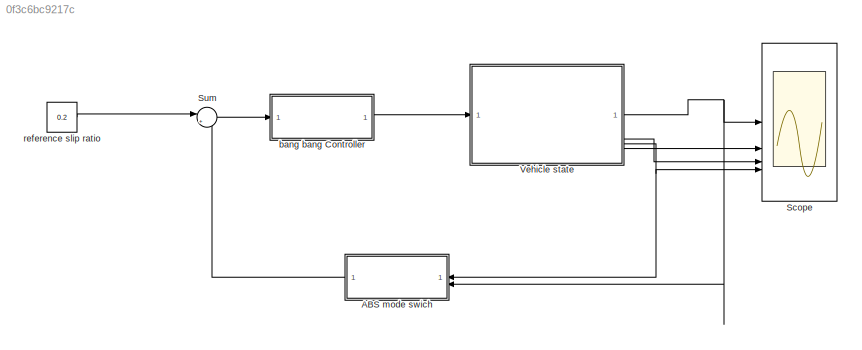
MODEL slx_0f3c6bc9217c
KIND model
CONFIG AbsTol = auto
CONFIG EnableMultiTasking = off
CONFIG FixedStep = 0.01
CONFIG MaxStep = auto
CONFIG MinStep = auto
CONFIG RelTol = 1e-3
CONFIG SampleTimeConstraint = Unconstrained
CONFIG SolverName = ode3
CONFIG StartTime = 0.0
CONFIG StopTime = 4.5
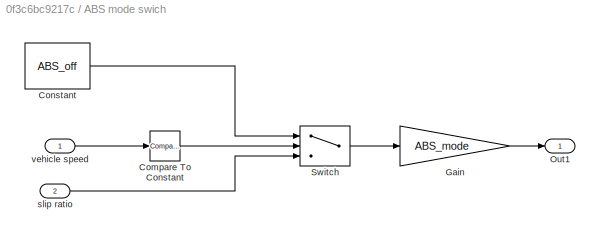
BLOCK [SubSystem] ABS mode swich
BLOCK [Reference] ABS mode swich/Compare To Constant  REF=simulink/Logic and Bit
Operations/Compare
To Constant
  SourceBlock = simulink/Logic and Bit\nOperations/Compare\nTo Constant
  SourceType = Compare To Constant
BLOCK [Constant] ABS mode swich/Constant
  Value = ABS_off
BLOCK [Gain] ABS mode swich/Gain
  Gain = ABS_mode
BLOCK [Outport] ABS mode swich/Out1
BLOCK [Switch] ABS mode swich/Switch
  Criteria = u2 > Threshold
  InputSameDT = off
  SaturateOnIntegerOverflow = off
BLOCK [Inport] ABS mode swich/slip ratio
  Port = 2
BLOCK [Inport] ABS mode swich/vehicle speed
BLOCK [Scope] Scope
  Floating = off
  NumInputPorts = 4
  ScopeSpecificationString = Simulink.scopes.TimeScopeBlockCfg('CurrentConfiguration', extmgr.ConfigurationSet(extmgr.Configuration('Core','General UI',true),extmgr.Configuration('Core','Source UI',true),extmgr.Configuration('Sources','WiredSimulink',true),extmgr.Configuration('Visuals','Time Domain',true,'SerializedDisplays',{struct('MinYLimReal','-0.1256','MaxYLimReal','1.12507','YLabelReal','','MinYLimMag','0.00000','MaxYL...<+3719ch>
BLOCK [Sum] Sum
  Inputs = |+-
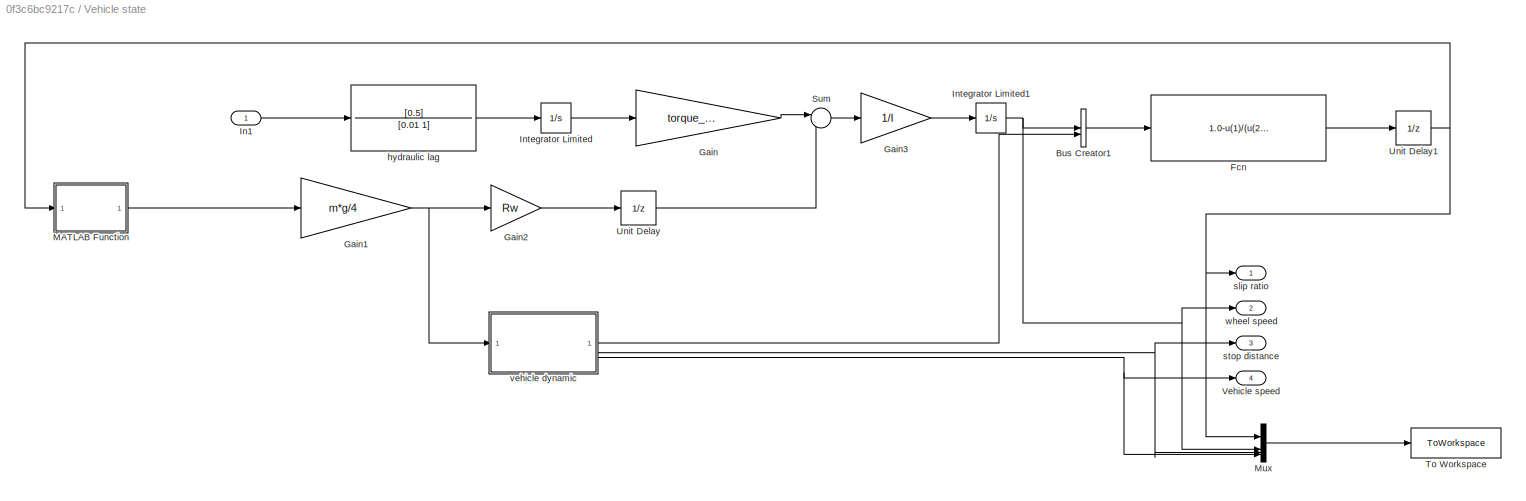
BLOCK [SubSystem] Vehicle state
BLOCK [BusCreator] Vehicle state/Bus Creator1
  DisplayOption = bar
  InheritFromInputs = on
  Inputs = 2
BLOCK [Fcn] Vehicle state/Fcn
  Expr = 1.0-u(1)/(u(2)+(u(2)==0)*eps)
BLOCK [Gain] Vehicle state/Gain
  Gain = torque_scaling
BLOCK [Gain] Vehicle state/Gain1
  Gain = m*g/4
BLOCK [Gain] Vehicle state/Gain2
  Gain = Rw
BLOCK [Gain] Vehicle state/Gain3
  Gain = 1/I
BLOCK [Inport] Vehicle state/In1
BLOCK [Integrator] Vehicle state/Integrator Limited
  LimitOutput = on
  LowerSaturationLimit = 0
  UpperSaturationLimit = PBmax
BLOCK [Integrator] Vehicle state/Integrator Limited1
  InitialCondition = v0/Rw
  LimitOutput = on
  LowerSaturationLimit = 0
  NameLocation = left
  UpperSaturationLimit = 200
  ZeroCross = off
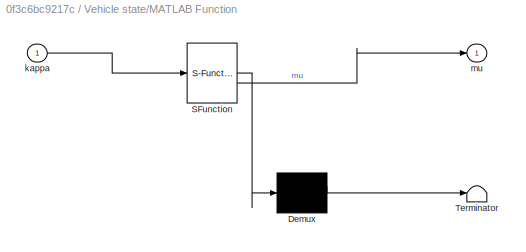
BLOCK [SubSystem] Vehicle state/MATLAB Function
  ErrorFcn = Stateflow.Translate.translate
  PermitHierarchicalResolution = ExplicitOnly
  SFBlockType = MATLAB Function
  TreatAsAtomicUnit = on
BLOCK [Demux] Vehicle state/MATLAB Function/ Demux 
  Outputs = 1
BLOCK [S-Function] Vehicle state/MATLAB Function/ SFunction 
  EnableBusSupport = on
  FunctionName = sf_sfun
  PortCounts = [1 2]
  SFcnIsStateOwnerBlock = off
  SFunctionDeploymentMode = off
  Tag = Stateflow S-Function 2
BLOCK [Terminator] Vehicle state/MATLAB Function/ Terminator 
BLOCK [Inport] Vehicle state/MATLAB Function/kappa
BLOCK [Outport] Vehicle state/MATLAB Function/mu
BLOCK [Mux] Vehicle state/Mux
  DisplayOption = bar
BLOCK [Sum] Vehicle state/Sum
  Inputs = |-+
BLOCK [ToWorkspace] Vehicle state/To Workspace
  FixptAsFi = on
  MaxDataPoints = inf
  SampleTime = -1
  SaveFormat = Timeseries
  VariableName = state
BLOCK [UnitDelay] Vehicle state/Unit Delay
  HasFrameUpgradeWarning = on
  SampleTime = -1
BLOCK [UnitDelay] Vehicle state/Unit Delay1
  HasFrameUpgradeWarning = on
  SampleTime = -1
BLOCK [Outport] Vehicle state/Vehicle speed
  Port = 4
BLOCK [TransferFcn] Vehicle state/hydraulic lag
  Denominator = [0.01 1]
  Numerator = [0.5]
BLOCK [Outport] Vehicle state/slip ratio
BLOCK [Outport] Vehicle state/stop distance
  Port = 3
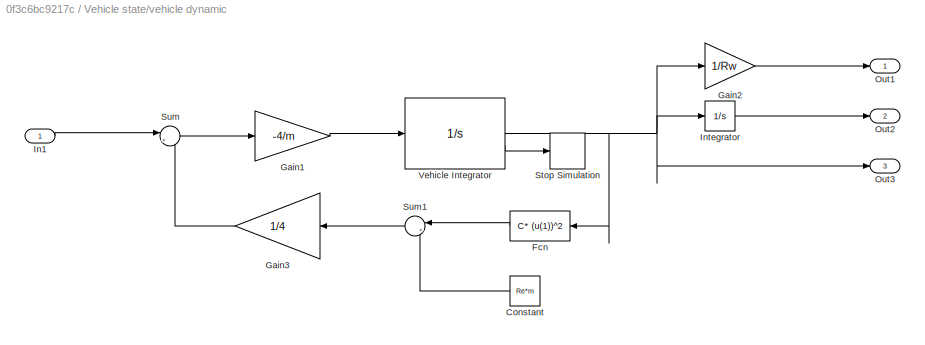
BLOCK [SubSystem] Vehicle state/vehicle dynamic
BLOCK [Constant] Vehicle state/vehicle dynamic/Constant
  Value = Re*m
BLOCK [Fcn] Vehicle state/vehicle dynamic/Fcn
  Expr = C* (u(1))^2
BLOCK [Gain] Vehicle state/vehicle dynamic/Gain1
  Gain = -4/m
BLOCK [Gain] Vehicle state/vehicle dynamic/Gain2
  Gain = 1/Rw
BLOCK [Gain] Vehicle state/vehicle dynamic/Gain3
  Gain = 1/4
BLOCK [Inport] Vehicle state/vehicle dynamic/In1
BLOCK [Integrator] Vehicle state/vehicle dynamic/Integrator
BLOCK [Outport] Vehicle state/vehicle dynamic/Out1
BLOCK [Outport] Vehicle state/vehicle dynamic/Out2
  Port = 2
BLOCK [Outport] Vehicle state/vehicle dynamic/Out3
  Port = 3
BLOCK [Stop] Vehicle state/vehicle dynamic/Stop Simulation
BLOCK [Sum] Vehicle state/vehicle dynamic/Sum
  Inputs = |++
BLOCK [Sum] Vehicle state/vehicle dynamic/Sum1
  Inputs = |++
BLOCK [Integrator] Vehicle state/vehicle dynamic/Vehicle Integrator
  InitialCondition = v0
  LimitOutput = on
  LowerSaturationLimit = -1
  ShowSaturationPort = on
  UpperSaturationLimit = 500
BLOCK [Outport] Vehicle state/wheel speed
  Port = 2
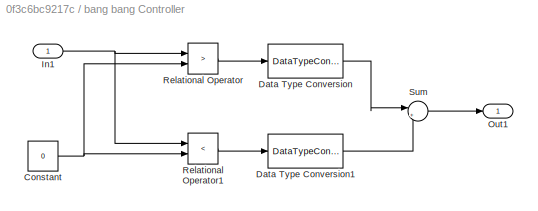
BLOCK [SubSystem] bang bang Controller
BLOCK [Constant] bang bang Controller/Constant
  Value = 0
BLOCK [DataTypeConversion] bang bang Controller/Data Type Conversion
  OutDataTypeStr = double
  RndMeth = Floor
  SaturateOnIntegerOverflow = off
BLOCK [DataTypeConversion] bang bang Controller/Data Type Conversion1
  OutDataTypeStr = double
  RndMeth = Floor
  SaturateOnIntegerOverflow = off
BLOCK [Inport] bang bang Controller/In1
BLOCK [Outport] bang bang Controller/Out1
BLOCK [RelationalOperator] bang bang Controller/Relational Operator
  InputSameDT = off
  Operator = >
  OutDataTypeStr = boolean
  RndMeth = Simplest
BLOCK [RelationalOperator] bang bang Controller/Relational Operator1
  InputSameDT = off
  Operator = <
  OutDataTypeStr = boolean
  RndMeth = Simplest
BLOCK [Sum] bang bang Controller/Sum
  Inputs = |+-
BLOCK [Constant] reference slip ratio
  Value = 0.2
LINE ABS mode swich/Compare To Constant:1 -> ABS mode swich/Switch:2
LINE ABS mode swich/Constant:1 -> ABS mode swich/Switch:1
LINE ABS mode swich/Gain:1 -> ABS mode swich/Out1:1
LINE ABS mode swich/Switch:1 -> ABS mode swich/Gain:1
LINE ABS mode swich/slip ratio:1 -> ABS mode swich/Switch:3
LINE ABS mode swich/vehicle speed:1 -> ABS mode swich/Compare To Constant:1
LINE ABS mode swich:1 -> Sum:2
LINE Sum:1 -> bang bang Controller:1
LINE Vehicle state/Bus Creator1:1 -> Vehicle state/Fcn:1
LINE Vehicle state/Fcn:1 -> Vehicle state/Unit Delay1:1
NET Vehicle state/Gain1:1 -> Vehicle state/Gain2:1, Vehicle state/vehicle dynamic:1
LINE Vehicle state/Gain2:1 -> Vehicle state/Unit Delay:1
LINE Vehicle state/Gain3:1 -> Vehicle state/Integrator Limited1:1
LINE Vehicle state/Gain:1 -> Vehicle state/Sum:1
LINE Vehicle state/In1:1 -> Vehicle state/hydraulic lag:1
NET Vehicle state/Integrator Limited1:1 -> Vehicle state/Bus Creator1:1, Vehicle state/Mux:2, Vehicle state/wheel speed:1
LINE Vehicle state/Integrator Limited:1 -> Vehicle state/Gain:1
LINE Vehicle state/MATLAB Function:1 -> Vehicle state/Gain1:1
LINE Vehicle state/Mux:1 -> Vehicle state/To Workspace:1
LINE Vehicle state/Sum:1 -> Vehicle state/Gain3:1
NET Vehicle state/Unit Delay1:1 -> Vehicle state/MATLAB Function:1, Vehicle state/Mux:1, Vehicle state/slip ratio:1
LINE Vehicle state/Unit Delay:1 -> Vehicle state/Sum:2
LINE Vehicle state/hydraulic lag:1 -> Vehicle state/Integrator Limited:1
LINE Vehicle state/vehicle dynamic/Constant:1 -> Vehicle state/vehicle dynamic/Sum1:2
LINE Vehicle state/vehicle dynamic/Fcn:1 -> Vehicle state/vehicle dynamic/Sum1:1
LINE Vehicle state/vehicle dynamic/Gain1:1 -> Vehicle state/vehicle dynamic/Vehicle Integrator:1
LINE Vehicle state/vehicle dynamic/Gain2:1 -> Vehicle state/vehicle dynamic/Out1:1
LINE Vehicle state/vehicle dynamic/Gain3:1 -> Vehicle state/vehicle dynamic/Sum:2
LINE Vehicle state/vehicle dynamic/In1:1 -> Vehicle state/vehicle dynamic/Sum:1
LINE Vehicle state/vehicle dynamic/Integrator:1 -> Vehicle state/vehicle dynamic/Out2:1
LINE Vehicle state/vehicle dynamic/Sum1:1 -> Vehicle state/vehicle dynamic/Gain3:1
LINE Vehicle state/vehicle dynamic/Sum:1 -> Vehicle state/vehicle dynamic/Gain1:1
NET Vehicle state/vehicle dynamic/Vehicle Integrator:1 -> Vehicle state/vehicle dynamic/Fcn:1, Vehicle state/vehicle dynamic/Gain2:1, Vehicle state/vehicle dynamic/Integrator:1, Vehicle state/vehicle dynamic/Out3:1
LINE Vehicle state/vehicle dynamic/Vehicle Integrator:2 -> Vehicle state/vehicle dynamic/Stop Simulation:1
LINE Vehicle state/vehicle dynamic:1 -> Vehicle state/Bus Creator1:2
NET Vehicle state/vehicle dynamic:2 -> Vehicle state/Mux:3, Vehicle state/stop distance:1
NET Vehicle state/vehicle dynamic:3 -> Vehicle state/Mux:4, Vehicle state/Vehicle speed:1
NET Vehicle state:1 -> ABS mode swich:2, Scope:1
LINE Vehicle state:2 -> Scope:2
LINE Vehicle state:3 -> Scope:3
NET Vehicle state:4 -> ABS mode swich:1, Scope:4
NET bang bang Controller/Constant:1 -> bang bang Controller/Relational Operator1:2, bang bang Controller/Relational Operator:2
LINE bang bang Controller/Data Type Conversion1:1 -> bang bang Controller/Sum:2
LINE bang bang Controller/Data Type Conversion:1 -> bang bang Controller/Sum:1
NET bang bang Controller/In1:1 -> bang bang Controller/Relational Operator1:1, bang bang Controller/Relational Operator:1
LINE bang bang Controller/Relational Operator1:1 -> bang bang Controller/Data Type Conversion1:1
LINE bang bang Controller/Relational Operator:1 -> bang bang Controller/Data Type Conversion:1
LINE bang bang Controller/Sum:1 -> bang bang Controller/Out1:1
LINE bang bang Controller:1 -> Vehicle state:1
LINE reference slip ratio:1 -> Sum:1
note: NET lines group one-source signal fan-out (src -> all destinations, sorted); 1:1 wires keep LINE
CHART Vehicle state/MATLAB Function states=1 transitions=1
  STATE_LABEL 'eML_blk_kernel()'
  STATE_LABEL 'SCRIPT:\nfunction mu = magic_mu(kappa)\n% Magic Formula tire model\n\n% 參數（你給的）\nD = 0.7;\nC = 2.45;\nB = 4;\nE = 0.95;\n\n% 保護 slip ratio 範圍，避免爆炸\nkappa = max(min(kappa, 1), -1);\n\n% Magic Formula 計算 μ\nmu = D * sin( C * atan( B * kappa - E * (B * kappa - atan(B * kappa)) ) );\n'
CHART  states=0 transitions=0
